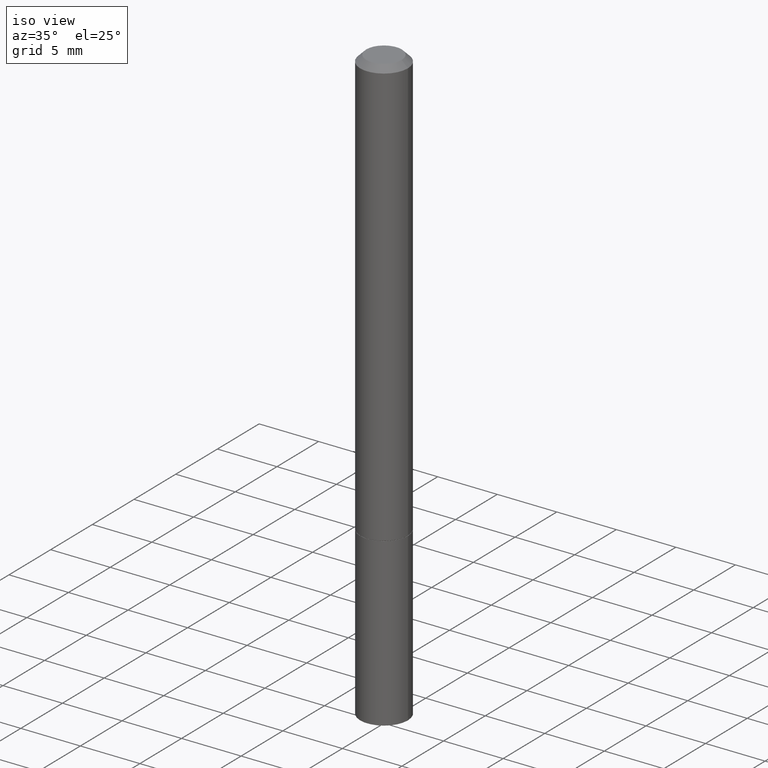
[diagram: clean part render]
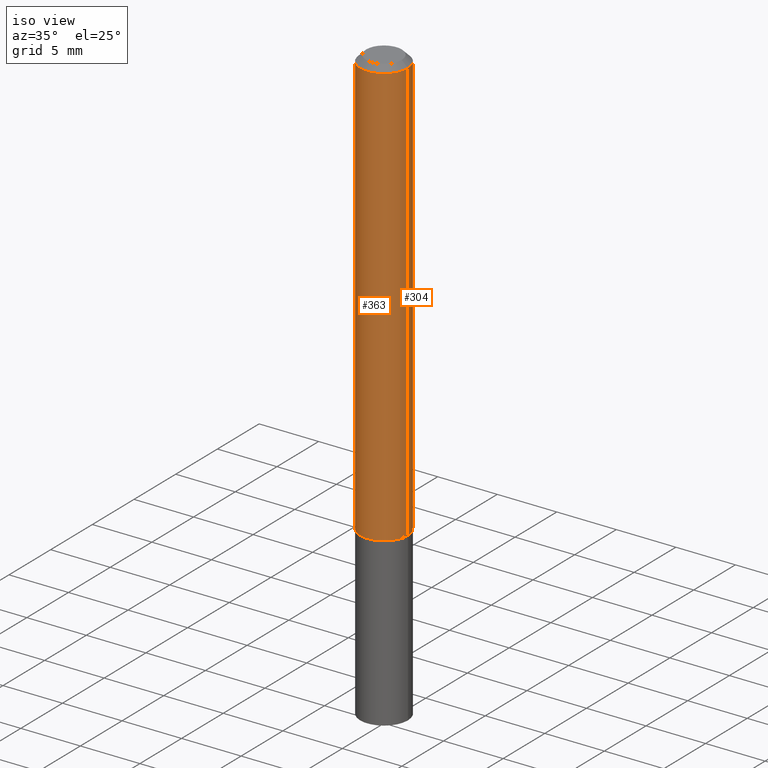
[diagram: same view with one multi-face feature highlighted, each face labeled with its STEP entity id]
A machine part, iso view. The highlighted faces form ONE feature: a constant-radius fillet chain: 2 tangent blend faces with common blend radius 2.0002 mm. The faces share edges in the B-rep.
Their STEP definitions:
[1] entity #304 (Cylinder):
#14 = VERTEX_POINT ( 'NONE', #37 ) ;
#22 = CIRCLE ( 'NONE', #165, 0.07874999999999984790 ) ;
#30 = VERTEX_POINT ( 'NONE', #197 ) ;
#37 = CARTESIAN_POINT ( 'NONE',  ( -0.07874999999999984790, 4.800786840909293572E-16, -0.02000000000000004205 ) ) ;
#39 = EDGE_LOOP ( 'NONE', ( #277, #110, #229, #250 ) ) ;
#50 = VECTOR ( 'NONE', #364, 39.37007874015748143 ) ;
#88 = CARTESIAN_POINT ( 'NONE',  ( 0.000000000000000000, 0.000000000000000000, 0.000000000000000000 ) ) ;
#100 = CARTESIAN_POINT ( 'NONE',  ( 3.463517470200008716E-29, -4.944985020203546646E-15, -1.416299999999999892 ) ) ;
#107 = CARTESIAN_POINT ( 'NONE',  ( 4.890937612370283668E-31, -6.982962677686305168E-17, -0.02000000000000004205 ) ) ;
#108 = LINE ( 'NONE', #299, #50 ) ;
#110 = ORIENTED_EDGE ( 'NONE', *, *, #351, .T. ) ;
#116 = VECTOR ( 'NONE', #245, 39.37007874015748143 ) ;
#131 = EDGE_CURVE ( 'NONE', #143, #14, #22, .T. ) ;
#143 = VERTEX_POINT ( 'NONE', #157 ) ;
#148 = VERTEX_POINT ( 'NONE', #184 ) ;
#157 = CARTESIAN_POINT ( 'NONE',  ( 0.07874999999999984790, -6.100938441013701032E-16, -0.02000000000000004205 ) ) ;
#158 = DIRECTION ( 'NONE',  ( 1.000000000000000000, -6.982962677686265922E-15, 0.000000000000000000 ) ) ;
#161 = FACE_OUTER_BOUND ( 'NONE', #39, .T. ) ;
#165 = AXIS2_PLACEMENT_3D ( 'NONE', #107, #216, #158 ) ;
#173 = AXIS2_PLACEMENT_3D ( 'NONE', #88, #302, #336 ) ;
#184 = CARTESIAN_POINT ( 'NONE',  ( 0.07875000000000000056, -5.494893331071339992E-15, -1.416299999999999892 ) ) ;
#187 = CARTESIAN_POINT ( 'NONE',  ( 0.07874999999999991729, -5.499083108677928526E-16, 3.839989210939295513E-30 ) ) ;
#197 = CARTESIAN_POINT ( 'NONE',  ( -0.07875000000000000056, -1.947854919079123015E-15, -1.416299999999999892 ) ) ;
#212 = DIRECTION ( 'NONE',  ( -2.445468806185136597E-29, 3.491481338843145583E-15, 1.000000000000000000 ) ) ;
#214 = EDGE_CURVE ( 'NONE', #148, #143, #352, .T. ) ;
#216 = DIRECTION ( 'NONE',  ( -2.445468806185136597E-29, 3.491481338843145583E-15, 1.000000000000000000 ) ) ;
#229 = ORIENTED_EDGE ( 'NONE', *, *, #131, .F. ) ;
#245 = DIRECTION ( 'NONE',  ( -2.445468806185136877E-29, 3.491481338843145188E-15, 1.000000000000000000 ) ) ;
#246 = CYLINDRICAL_SURFACE ( 'NONE', #173, 0.07874999999999991729 ) ;
#250 = ORIENTED_EDGE ( 'NONE', *, *, #214, .F. ) ;
#265 = DIRECTION ( 'NONE',  ( 1.000000000000000000, -6.982962677686261977E-15, 0.000000000000000000 ) ) ;
#277 = ORIENTED_EDGE ( 'NONE', *, *, #278, .T. ) ;
#278 = EDGE_CURVE ( 'NONE', #148, #30, #310, .T. ) ;
#299 = CARTESIAN_POINT ( 'NONE',  ( -0.07874999999999991729, 5.595524044110783087E-16, -3.873661383575733588E-30 ) ) ;
#302 = DIRECTION ( 'NONE',  ( -2.445468806185136597E-29, 3.491481338843145583E-15, 1.000000000000000000 ) ) ;
#304 = ADVANCED_FACE ( 'NONE', ( #161 ), #246, .T. ) ;
#310 = CIRCLE ( 'NONE', #361, 0.07875000000000000056 ) ;
#336 = DIRECTION ( 'NONE',  ( 1.000000000000000000, -6.982962677686265922E-15, 4.876176775795935793E-29 ) ) ;
#351 = EDGE_CURVE ( 'NONE', #30, #14, #108, .T. ) ;
#352 = LINE ( 'NONE', #187, #116 ) ;
#361 = AXIS2_PLACEMENT_3D ( 'NONE', #100, #212, #265 ) ;
#364 = DIRECTION ( 'NONE',  ( -2.445468806185136877E-29, 3.491481338843145188E-15, 1.000000000000000000 ) ) ;
[2] entity #363 (Cylinder):
#14 = VERTEX_POINT ( 'NONE', #37 ) ;
#26 = ORIENTED_EDGE ( 'NONE', *, *, #214, .T. ) ;
#30 = VERTEX_POINT ( 'NONE', #197 ) ;
#33 = CIRCLE ( 'NONE', #150, 0.07875000000000000056 ) ;
#37 = CARTESIAN_POINT ( 'NONE',  ( -0.07874999999999984790, 4.800786840909293572E-16, -0.02000000000000004205 ) ) ;
#44 = EDGE_CURVE ( 'NONE', #30, #148, #33, .T. ) ;
#50 = VECTOR ( 'NONE', #364, 39.37007874015748143 ) ;
#51 = DIRECTION ( 'NONE',  ( 1.000000000000000000, -6.982962677686265922E-15, 4.876176775795935793E-29 ) ) ;
#58 = CARTESIAN_POINT ( 'NONE',  ( 3.463517470200008716E-29, -4.944985020203546646E-15, -1.416299999999999892 ) ) ;
#62 = ORIENTED_EDGE ( 'NONE', *, *, #44, .T. ) ;
#83 = CYLINDRICAL_SURFACE ( 'NONE', #356, 0.07874999999999991729 ) ;
#84 = EDGE_CURVE ( 'NONE', #14, #143, #104, .T. ) ;
#94 = DIRECTION ( 'NONE',  ( -2.445468806185136597E-29, 3.491481338843145583E-15, 1.000000000000000000 ) ) ;
#104 = CIRCLE ( 'NONE', #348, 0.07874999999999984790 ) ;
#108 = LINE ( 'NONE', #299, #50 ) ;
#114 = ORIENTED_EDGE ( 'NONE', *, *, #84, .F. ) ;
#116 = VECTOR ( 'NONE', #245, 39.37007874015748143 ) ;
#128 = ORIENTED_EDGE ( 'NONE', *, *, #351, .F. ) ;
#143 = VERTEX_POINT ( 'NONE', #157 ) ;
#148 = VERTEX_POINT ( 'NONE', #184 ) ;
#150 = AXIS2_PLACEMENT_3D ( 'NONE', #58, #94, #347 ) ;
#157 = CARTESIAN_POINT ( 'NONE',  ( 0.07874999999999984790, -6.100938441013701032E-16, -0.02000000000000004205 ) ) ;
#162 = EDGE_LOOP ( 'NONE', ( #128, #62, #26, #114 ) ) ;
#182 = CARTESIAN_POINT ( 'NONE',  ( 4.890937612370283668E-31, -6.982962677686305168E-17, -0.02000000000000004205 ) ) ;
#184 = CARTESIAN_POINT ( 'NONE',  ( 0.07875000000000000056, -5.494893331071339992E-15, -1.416299999999999892 ) ) ;
#187 = CARTESIAN_POINT ( 'NONE',  ( 0.07874999999999991729, -5.499083108677928526E-16, 3.839989210939295513E-30 ) ) ;
#197 = CARTESIAN_POINT ( 'NONE',  ( -0.07875000000000000056, -1.947854919079123015E-15, -1.416299999999999892 ) ) ;
#214 = EDGE_CURVE ( 'NONE', #148, #143, #352, .T. ) ;
#245 = DIRECTION ( 'NONE',  ( -2.445468806185136877E-29, 3.491481338843145188E-15, 1.000000000000000000 ) ) ;
#276 = DIRECTION ( 'NONE',  ( -2.445468806185136597E-29, 3.491481338843145583E-15, 1.000000000000000000 ) ) ;
#299 = CARTESIAN_POINT ( 'NONE',  ( -0.07874999999999991729, 5.595524044110783087E-16, -3.873661383575733588E-30 ) ) ;
#306 = FACE_OUTER_BOUND ( 'NONE', #162, .T. ) ;
#311 = DIRECTION ( 'NONE',  ( 1.000000000000000000, -6.982962677686265922E-15, 0.000000000000000000 ) ) ;
#319 = DIRECTION ( 'NONE',  ( -2.445468806185136597E-29, 3.491481338843145583E-15, 1.000000000000000000 ) ) ;
#330 = CARTESIAN_POINT ( 'NONE',  ( 0.000000000000000000, 0.000000000000000000, 0.000000000000000000 ) ) ;
#347 = DIRECTION ( 'NONE',  ( 1.000000000000000000, -6.982962677686261977E-15, 0.000000000000000000 ) ) ;
#348 = AXIS2_PLACEMENT_3D ( 'NONE', #182, #319, #311 ) ;
#351 = EDGE_CURVE ( 'NONE', #30, #14, #108, .T. ) ;
#352 = LINE ( 'NONE', #187, #116 ) ;
#356 = AXIS2_PLACEMENT_3D ( 'NONE', #330, #276, #51 ) ;
#363 = ADVANCED_FACE ( 'NONE', ( #306 ), #83, .T. ) ;
#364 = DIRECTION ( 'NONE',  ( -2.445468806185136877E-29, 3.491481338843145188E-15, 1.000000000000000000 ) ) ;